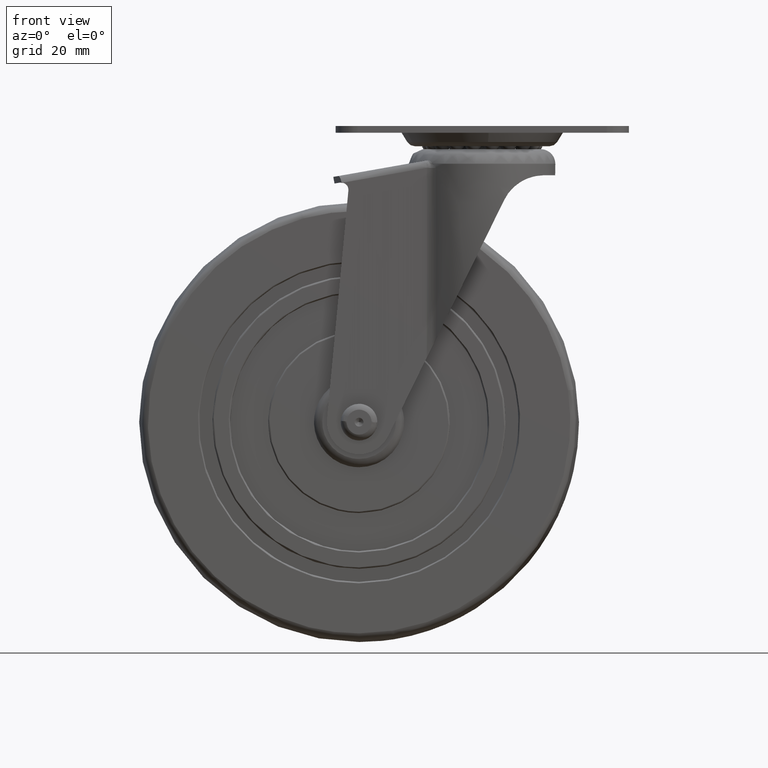
[diagram: clean part render]
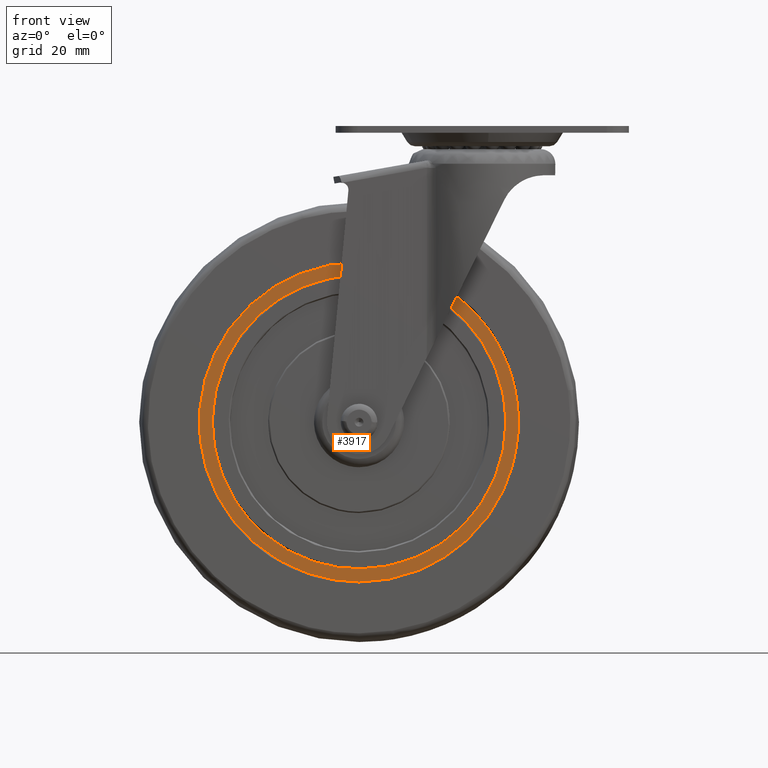
[diagram: same view with one face highlighted and labeled with its STEP entity id]
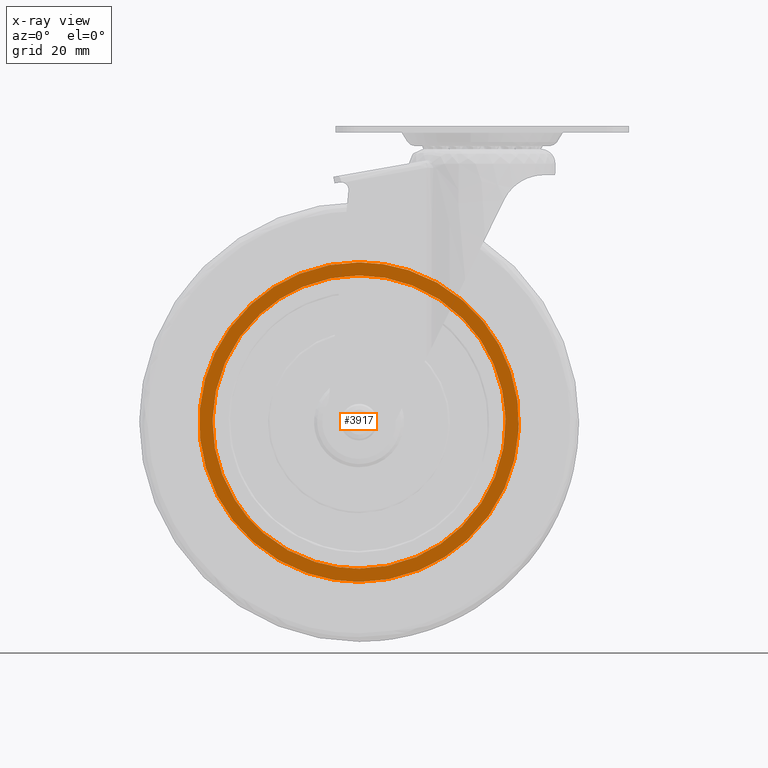
[diagram: x-ray of the same camera — body ghosted, the highlighted face saturated]
A machine part, front view. The second image highlights one B-rep face of the part: STEP entity #3917.
The next image is the same camera in x-ray: the body ghosted, the highlighted face saturated — about 0% of this face is hidden behind the body in this view.
In plain terms, the highlighted face is a freeform B-spline surface patch.
Its self-contained STEP definition (entity closure, byte-faithful):
#149=CARTESIAN_POINT('',(-52.517875524411082,-12.500000000000000,14.564475776548781));
#150=VERTEX_POINT('',#149);
#156=CARTESIAN_POINT('',(0.0,-12.500000000000000,54.500011048105200));
#157=VERTEX_POINT('',#156);
#158=CARTESIAN_POINT('',(0.0,-12.500000000000000,54.500011048105200));
#159=CARTESIAN_POINT('',(-41.442786704118831,-12.500000000000000,54.500011048105200));
#160=CARTESIAN_POINT('',(-52.517875524411082,-12.500000000000007,14.564475776548777));
#168=(BOUNDED_CURVE()B_SPLINE_CURVE(2,(#158,#159,#160),.UNSPECIFIED.,.F.,.U.)B_SPLINE_CURVE_WITH_KNOTS((3,3),(0.500000000000000,0.704451230731371),.UNSPECIFIED.)CURVE()GEOMETRIC_REPRESENTATION_ITEM()RATIONAL_B_SPLINE_CURVE((1.0,0.760470483762868,0.912717802655107))REPRESENTATION_ITEM(''));
#169=EDGE_CURVE('',#157,#150,#168,.T.);
#171=CARTESIAN_POINT('',(0.0,-12.500000000000000,-54.500011048105200));
#172=VERTEX_POINT('',#171);
#173=CARTESIAN_POINT('',(0.0,-12.500000000000000,-54.500011048105200));
#174=CARTESIAN_POINT('',(54.500011048105200,-12.500000000000000,-54.500011048105200));
#175=CARTESIAN_POINT('',(54.500011048105200,-12.500000000000000,1.855278E-015));
#176=CARTESIAN_POINT('',(54.500011048105200,-12.500000000000000,54.500011048105200));
#177=CARTESIAN_POINT('',(0.0,-12.500000000000000,54.500011048105200));
#185=(BOUNDED_CURVE()B_SPLINE_CURVE(2,(#173,#174,#175,#176,#177),.UNSPECIFIED.,.F.,.U.)B_SPLINE_CURVE_WITH_KNOTS((3,2,3),(0.0,0.250000000000000,0.500000000000000),.UNSPECIFIED.)CURVE()GEOMETRIC_REPRESENTATION_ITEM()RATIONAL_B_SPLINE_CURVE((1.0,0.707106781186548,1.0,0.707106781186548,1.0))REPRESENTATION_ITEM(''));
#186=EDGE_CURVE('',#172,#157,#185,.T.);
#188=CARTESIAN_POINT('',(-48.297431569519532,-12.500000000000000,-25.250926874677429));
#189=VERTEX_POINT('',#188);
#190=CARTESIAN_POINT('',(-48.297431569519524,-12.499999999999995,-25.250926874677429));
#191=CARTESIAN_POINT('',(-33.005386804137281,-12.500000000000000,-54.500011048105193));
#192=CARTESIAN_POINT('',(0.0,-12.500000000000000,-54.500011048105200));
#200=(BOUNDED_CURVE()B_SPLINE_CURVE(2,(#190,#191,#192),.UNSPECIFIED.,.F.,.U.)B_SPLINE_CURVE_WITH_KNOTS((3,3),(0.828825794104341,1.0),.UNSPECIFIED.)CURVE()GEOMETRIC_REPRESENTATION_ITEM()RATIONAL_B_SPLINE_CURVE((0.873536274509771,0.799456943429535,1.0))REPRESENTATION_ITEM(''));
#201=EDGE_CURVE('',#189,#172,#200,.T.);
#241=CARTESIAN_POINT('',(-52.517875524411082,-12.500000000000007,14.564475776548777));
#242=CARTESIAN_POINT('',(-54.500011048105200,-12.499999999999996,7.417116111650489));
#243=CARTESIAN_POINT('',(-54.500011048105200,-12.500000000000000,1.855278E-015));
#244=CARTESIAN_POINT('',(-54.500011048105200,-12.500000000000004,-13.387257100975525));
#245=CARTESIAN_POINT('',(-48.297431569519524,-12.499999999999995,-25.250926874677429));
#253=(BOUNDED_CURVE()B_SPLINE_CURVE(2,(#241,#242,#243,#244,#245),.UNSPECIFIED.,.F.,.U.)B_SPLINE_CURVE_WITH_KNOTS((3,2,3),(0.704451230731371,0.750000000000000,0.828825794104341),.UNSPECIFIED.)CURVE()GEOMETRIC_REPRESENTATION_ITEM()RATIONAL_B_SPLINE_CURVE((0.912717802655107,0.946636297423679,1.0,0.907649837757013,0.873536274509771))REPRESENTATION_ITEM(''));
#254=EDGE_CURVE('',#150,#189,#253,.T.);
#282=CARTESIAN_POINT('',(-32.716978236376740,-12.499999999997080,-37.810042780727088));
#283=VERTEX_POINT('',#282);
#284=CARTESIAN_POINT('',(0.0,-12.500000000000000,-50.0));
#285=VERTEX_POINT('',#284);
#286=CARTESIAN_POINT('',(-32.716978236376740,-12.499999999997081,-37.810042780727095));
#287=CARTESIAN_POINT('',(-18.629405703670685,-12.499999999999998,-49.999999999999993));
#288=CARTESIAN_POINT('',(0.0,-12.500000000000000,-50.0));
#296=(BOUNDED_CURVE()B_SPLINE_CURVE(2,(#286,#287,#288),.UNSPECIFIED.,.F.,.U.)B_SPLINE_CURVE_WITH_KNOTS((3,3),(0.885882138384662,1.0),.UNSPECIFIED.)CURVE()GEOMETRIC_REPRESENTATION_ITEM()RATIONAL_B_SPLINE_CURVE((0.854663300643452,0.866302608749502,1.0))REPRESENTATION_ITEM(''));
#297=EDGE_CURVE('',#283,#285,#296,.T.);
#299=CARTESIAN_POINT('',(0.0,-12.500000000000000,50.0));
#300=VERTEX_POINT('',#299);
#301=CARTESIAN_POINT('',(0.0,-12.500000000000000,-50.0));
#302=CARTESIAN_POINT('',(49.999999999999993,-12.499999999999998,-49.999999999999993));
#303=CARTESIAN_POINT('',(50.0,-12.500000000000000,1.855278E-015));
#304=CARTESIAN_POINT('',(49.999999999999993,-12.499999999999998,49.999999999999993));
#305=CARTESIAN_POINT('',(0.0,-12.500000000000000,50.0));
#313=(BOUNDED_CURVE()B_SPLINE_CURVE(2,(#301,#302,#303,#304,#305),.UNSPECIFIED.,.F.,.U.)B_SPLINE_CURVE_WITH_KNOTS((3,2,3),(0.0,0.250000000000000,0.500000000000000),.UNSPECIFIED.)CURVE()GEOMETRIC_REPRESENTATION_ITEM()RATIONAL_B_SPLINE_CURVE((1.0,0.707106781186547,1.0,0.707106781186547,1.0))REPRESENTATION_ITEM(''));
#314=EDGE_CURVE('',#285,#300,#313,.T.);
#316=CARTESIAN_POINT('',(-33.779507588362222,-12.500000000000000,36.863869399288042));
#317=VERTEX_POINT('',#316);
#318=CARTESIAN_POINT('',(0.0,-12.500000000000000,50.0));
#319=CARTESIAN_POINT('',(-19.443934412527526,-12.499999999999995,50.000000000000007));
#320=CARTESIAN_POINT('',(-33.779507588362208,-12.499999999999998,36.863869399288028));
#328=(BOUNDED_CURVE()B_SPLINE_CURVE(2,(#318,#319,#320),.UNSPECIFIED.,.F.,.U.)B_SPLINE_CURVE_WITH_KNOTS((3,3),(0.500000000000000,0.618415197648908),.UNSPECIFIED.)CURVE()GEOMETRIC_REPRESENTATION_ITEM()RATIONAL_B_SPLINE_CURVE((1.0,0.861267966416720,0.853959782249433))REPRESENTATION_ITEM(''));
#329=EDGE_CURVE('',#300,#317,#328,.T.);
#426=CARTESIAN_POINT('',(-33.779507588362208,-12.499999999999998,36.863869399288028));
#427=CARTESIAN_POINT('',(-50.000000000000007,-12.500000000000002,22.000528804975243));
#428=CARTESIAN_POINT('',(-50.0,-12.500000000000000,1.855278E-015));
#429=CARTESIAN_POINT('',(-49.999999999999993,-12.499999999999996,-22.855067718189080));
#430=CARTESIAN_POINT('',(-32.716978236376740,-12.499999999997081,-37.810042780727095));
#438=(BOUNDED_CURVE()B_SPLINE_CURVE(2,(#426,#427,#428,#429,#430),.UNSPECIFIED.,.F.,.U.)B_SPLINE_CURVE_WITH_KNOTS((3,2,3),(0.618415197648908,0.750000000000000,0.885882138384662),.UNSPECIFIED.)CURVE()GEOMETRIC_REPRESENTATION_ITEM()RATIONAL_B_SPLINE_CURVE((0.853959782249433,0.845838814769827,1.0,0.840804172437046,0.854663300643452))REPRESENTATION_ITEM(''));
#439=EDGE_CURVE('',#317,#283,#438,.T.);
#3900=CARTESIAN_POINT('',(-59.943757694170870,-12.500000000000000,59.944562963761939));
#3901=CARTESIAN_POINT('',(-59.943757694170870,-12.500000000000000,-59.944564912834217));
#3902=CARTESIAN_POINT('',(59.944526603185047,-12.500000000000000,59.944562963761939));
#3903=CARTESIAN_POINT('',(59.944526603185047,-12.500000000000000,-59.944564912834217));
#3904=B_SPLINE_SURFACE_WITH_KNOTS('',1,1,((#3900,#3902),(#3901,#3903)),.UNSPECIFIED.,.F.,.F.,.U.,(2,2),(2,2),(0.0,119.889127876596210),(0.0,119.888284297355900),.UNSPECIFIED.);
#3905=ORIENTED_EDGE('',*,*,#186,.T.);
#3906=ORIENTED_EDGE('',*,*,#169,.T.);
#3907=ORIENTED_EDGE('',*,*,#254,.T.);
#3908=ORIENTED_EDGE('',*,*,#201,.T.);
#3909=EDGE_LOOP('',(#3905,#3906,#3907,#3908));
#3910=FACE_OUTER_BOUND('',#3909,.T.);
#3911=ORIENTED_EDGE('',*,*,#314,.F.);
#3912=ORIENTED_EDGE('',*,*,#297,.F.);
#3913=ORIENTED_EDGE('',*,*,#439,.F.);
#3914=ORIENTED_EDGE('',*,*,#329,.F.);
#3915=EDGE_LOOP('',(#3911,#3912,#3913,#3914));
#3916=FACE_BOUND('',#3915,.T.);
#3917=ADVANCED_FACE('',(#3910,#3916),#3904,.T.);